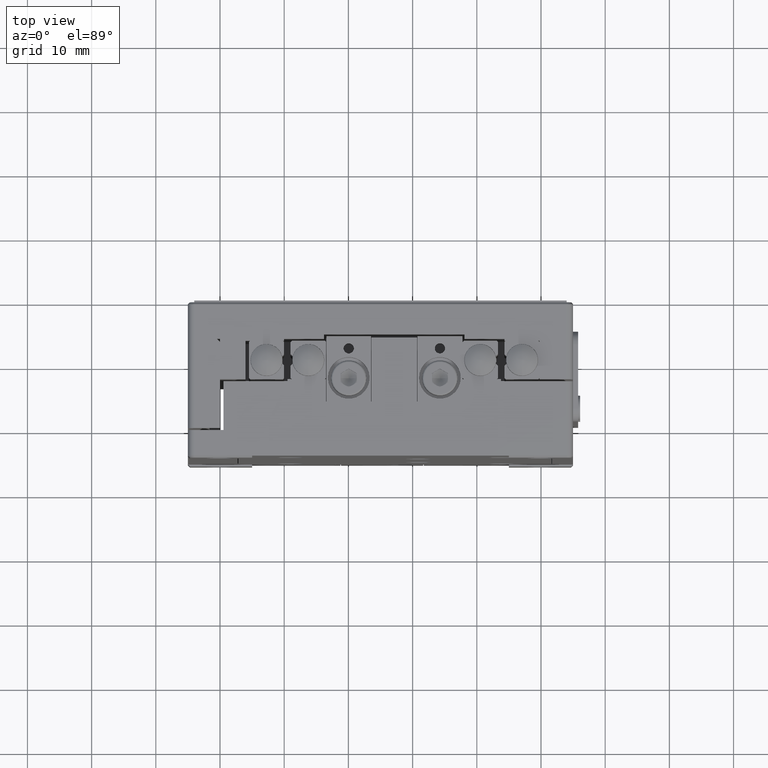
[diagram: clean part render]
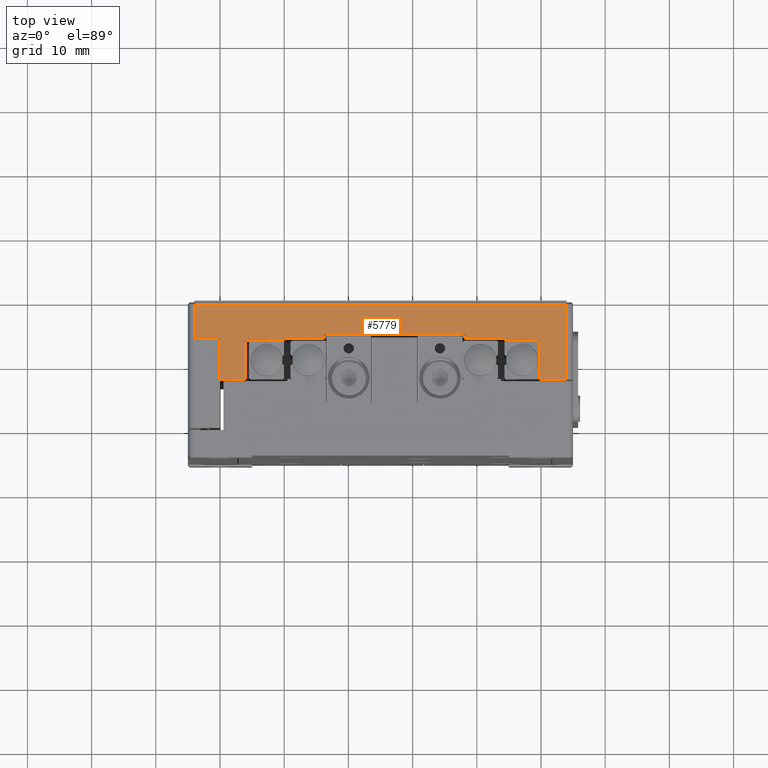
[diagram: same view with one face highlighted and labeled with its STEP entity id]
A machine part, top view. The second image highlights one B-rep face of the part: STEP entity #5779.
In plain terms, the highlighted planar face has unit normal (-0, 0, -1).
Its self-contained STEP definition (entity closure, byte-faithful):
#478 = EDGE_CURVE ( 'NONE', #15050, #9602, #19301, .T. ) ;
#634 = ORIENTED_EDGE ( 'NONE', *, *, #15355, .F. ) ;
#811 = CARTESIAN_POINT ( 'NONE',  ( 45.00000000000000000, 6.000000000000000000, 0.000000000000000000 ) ) ;
#841 = DIRECTION ( 'NONE',  ( 0.000000000000000000, -1.000000000000000000, 0.000000000000000000 ) ) ;
#894 = CARTESIAN_POINT ( 'NONE',  ( 51.00000000000000000, -1.355252715606879951E-15, 0.000000000000000000 ) ) ;
#1202 = VECTOR ( 'NONE', #15958, 1000.000000000000000 ) ;
#1342 = LINE ( 'NONE', #16362, #1202 ) ;
#1390 = CARTESIAN_POINT ( 'NONE',  ( 51.00000000000000000, 6.000000000000000000, 0.000000000000000000 ) ) ;
#1617 = EDGE_CURVE ( 'NONE', #22444, #3244, #16392, .T. ) ;
#1944 = ORIENTED_EDGE ( 'NONE', *, *, #20874, .T. ) ;
#2536 = EDGE_CURVE ( 'NONE', #18264, #8431, #12239, .T. ) ;
#2708 = DIRECTION ( 'NONE',  ( 1.000000000000000000, 0.000000000000000000, 0.000000000000000000 ) ) ;
#2711 = ORIENTED_EDGE ( 'NONE', *, *, #4411, .F. ) ;
#2819 = CARTESIAN_POINT ( 'NONE',  ( 10.69999999999999929, 6.000000000000000000, 0.000000000000000000 ) ) ;
#3184 = DIRECTION ( 'NONE',  ( 0.000000000000000000, -1.000000000000000000, 0.000000000000000000 ) ) ;
#3244 = VERTEX_POINT ( 'NONE', #21603 ) ;
#3270 = CARTESIAN_POINT ( 'NONE',  ( 59.00000000000000000, 6.299999999999999822, 0.000000000000000000 ) ) ;
#3380 = VECTOR ( 'NONE', #18536, 1000.000000000000000 ) ;
#3426 = ORIENTED_EDGE ( 'NONE', *, *, #6223, .F. ) ;
#3507 = DIRECTION ( 'NONE',  ( 0.000000000000000000, 0.000000000000000000, 1.000000000000000000 ) ) ;
#3510 = VERTEX_POINT ( 'NONE', #8086 ) ;
#4118 = CARTESIAN_POINT ( 'NONE',  ( 16.89999999999999858, 7.000000000000000000, 0.000000000000000000 ) ) ;
#4411 = EDGE_CURVE ( 'NONE', #8074, #12332, #18697, .T. ) ;
#4640 = VECTOR ( 'NONE', #15558, 1000.000000000000000 ) ;
#4725 = DIRECTION ( 'NONE',  ( 1.000000000000000000, 1.219727444046191995E-16, 0.000000000000000000 ) ) ;
#5333 = CARTESIAN_POINT ( 'NONE',  ( 5.200000000000000178, 0.000000000000000000, 0.000000000000000000 ) ) ;
#5434 = CARTESIAN_POINT ( 'NONE',  ( 1.000000000000000000, 0.000000000000000000, 0.000000000000000000 ) ) ;
#5680 = ORIENTED_EDGE ( 'NONE', *, *, #26035, .F. ) ;
#5743 = LINE ( 'NONE', #22903, #3380 ) ;
#5779 = ADVANCED_FACE ( 'NONE', ( #27444 ), #14071, .F. ) ;
#5789 = CARTESIAN_POINT ( 'NONE',  ( 45.00000000000000000, 6.000000000000000000, 0.000000000000000000 ) ) ;
#6223 = EDGE_CURVE ( 'NONE', #9602, #3510, #17289, .T. ) ;
#6250 = EDGE_CURVE ( 'NONE', #12332, #22499, #26977, .T. ) ;
#6275 = CARTESIAN_POINT ( 'NONE',  ( 5.200000000000000178, 6.000000000000000000, 0.000000000000000000 ) ) ;
#6347 = ORIENTED_EDGE ( 'NONE', *, *, #21388, .F. ) ;
#6370 = LINE ( 'NONE', #21977, #15180 ) ;
#6544 = CARTESIAN_POINT ( 'NONE',  ( 38.80000000000000426, 7.000000000000000000, 0.000000000000000000 ) ) ;
#6711 = CARTESIAN_POINT ( 'NONE',  ( 55.00000000000000000, -8.673617379884030542E-16, 0.000000000000000000 ) ) ;
#7104 = VECTOR ( 'NONE', #25983, 1000.000000000000000 ) ;
#7105 = ORIENTED_EDGE ( 'NONE', *, *, #25158, .F. ) ;
#7297 = CARTESIAN_POINT ( 'NONE',  ( 55.00000000000000000, 6.299999999999999822, 0.000000000000000000 ) ) ;
#7495 = VERTEX_POINT ( 'NONE', #17692 ) ;
#7817 = LINE ( 'NONE', #24980, #11197 ) ;
#8010 = DIRECTION ( 'NONE',  ( 0.000000000000000000, -1.000000000000000000, 0.000000000000000000 ) ) ;
#8059 = LINE ( 'NONE', #21134, #25415 ) ;
#8074 = VERTEX_POINT ( 'NONE', #18629 ) ;
#8086 = CARTESIAN_POINT ( 'NONE',  ( 45.00000000000000000, 6.299999999999999822, 0.000000000000000000 ) ) ;
#8431 = VERTEX_POINT ( 'NONE', #894 ) ;
#8557 = ORIENTED_EDGE ( 'NONE', *, *, #8633, .T. ) ;
#8633 = EDGE_CURVE ( 'NONE', #16148, #7495, #17581, .T. ) ;
#8727 = ORIENTED_EDGE ( 'NONE', *, *, #6250, .F. ) ;
#8748 = CARTESIAN_POINT ( 'NONE',  ( 38.80000000000000426, 7.000000000000000000, 0.000000000000000000 ) ) ;
#8817 = CARTESIAN_POINT ( 'NONE',  ( 38.80000000000000426, 6.299999999999999822, 0.000000000000000000 ) ) ;
#9062 = VECTOR ( 'NONE', #841, 1000.000000000000000 ) ;
#9276 = CARTESIAN_POINT ( 'NONE',  ( 16.89999999999999858, 7.000000000000000000, 0.000000000000000000 ) ) ;
#9508 = EDGE_CURVE ( 'NONE', #12138, #7495, #12771, .T. ) ;
#9602 = VERTEX_POINT ( 'NONE', #8817 ) ;
#10186 = VECTOR ( 'NONE', #25862, 1000.000000000000000 ) ;
#10358 = ORIENTED_EDGE ( 'NONE', *, *, #1617, .T. ) ;
#10564 = CARTESIAN_POINT ( 'NONE',  ( 10.69999999999999929, 6.299999999999999822, 0.000000000000000000 ) ) ;
#10782 = VERTEX_POINT ( 'NONE', #6711 ) ;
#10818 = CARTESIAN_POINT ( 'NONE',  ( 55.00000000000000000, -8.673617379884030542E-16, 0.000000000000000000 ) ) ;
#10892 = DIRECTION ( 'NONE',  ( 1.000000000000000000, 0.000000000000000000, 0.000000000000000000 ) ) ;
#10904 = ORIENTED_EDGE ( 'NONE', *, *, #17272, .F. ) ;
#10982 = ORIENTED_EDGE ( 'NONE', *, *, #9508, .F. ) ;
#11024 = LINE ( 'NONE', #4118, #25808 ) ;
#11054 = ORIENTED_EDGE ( 'NONE', *, *, #478, .F. ) ;
#11197 = VECTOR ( 'NONE', #3184, 1000.000000000000000 ) ;
#11236 = LINE ( 'NONE', #10818, #25601 ) ;
#11352 = CARTESIAN_POINT ( 'NONE',  ( 59.00000000000000000, 11.70000000000000107, 0.000000000000000000 ) ) ;
#11829 = VERTEX_POINT ( 'NONE', #5789 ) ;
#12138 = VERTEX_POINT ( 'NONE', #10564 ) ;
#12239 = LINE ( 'NONE', #20793, #25721 ) ;
#12332 = VERTEX_POINT ( 'NONE', #6275 ) ;
#12382 = DIRECTION ( 'NONE',  ( 0.000000000000000000, 1.000000000000000000, 0.000000000000000000 ) ) ;
#12771 = LINE ( 'NONE', #25969, #16862 ) ;
#12915 = DIRECTION ( 'NONE',  ( 1.000000000000000000, 0.000000000000000000, 0.000000000000000000 ) ) ;
#13125 = EDGE_CURVE ( 'NONE', #10782, #24836, #26573, .T. ) ;
#13423 = ORIENTED_EDGE ( 'NONE', *, *, #13679, .T. ) ;
#13495 = EDGE_CURVE ( 'NONE', #3510, #11829, #22165, .T. ) ;
#13571 = ORIENTED_EDGE ( 'NONE', *, *, #26517, .F. ) ;
#13679 = EDGE_CURVE ( 'NONE', #15242, #22240, #7817, .T. ) ;
#14071 = PLANE ( 'NONE',  #19082 ) ;
#14177 = DIRECTION ( 'NONE',  ( 1.000000000000000000, 0.000000000000000000, 0.000000000000000000 ) ) ;
#14495 = DIRECTION ( 'NONE',  ( 1.000000000000000000, 0.000000000000000000, 0.000000000000000000 ) ) ;
#15050 = VERTEX_POINT ( 'NONE', #6544 ) ;
#15180 = VECTOR ( 'NONE', #2708, 1000.000000000000000 ) ;
#15242 = VERTEX_POINT ( 'NONE', #11352 ) ;
#15292 = CARTESIAN_POINT ( 'NONE',  ( 60.00000000000000000, 6.299999999999999822, 0.000000000000000000 ) ) ;
#15355 = EDGE_CURVE ( 'NONE', #22444, #8074, #1342, .T. ) ;
#15558 = DIRECTION ( 'NONE',  ( 1.000000000000000000, 1.734723475976809806E-16, 0.000000000000000000 ) ) ;
#15750 = DIRECTION ( 'NONE',  ( 0.000000000000000000, 1.000000000000000000, 0.000000000000000000 ) ) ;
#15958 = DIRECTION ( 'NONE',  ( 1.000000000000000000, 0.000000000000000000, 0.000000000000000000 ) ) ;
#16148 = VERTEX_POINT ( 'NONE', #26452 ) ;
#16362 = CARTESIAN_POINT ( 'NONE',  ( 0.000000000000000000, 0.000000000000000000, 0.000000000000000000 ) ) ;
#16392 = LINE ( 'NONE', #5434, #27542 ) ;
#16862 = VECTOR ( 'NONE', #12915, 1000.000000000000000 ) ;
#17272 = EDGE_CURVE ( 'NONE', #8431, #10782, #11236, .T. ) ;
#17289 = LINE ( 'NONE', #19123, #10186 ) ;
#17581 = LINE ( 'NONE', #9276, #9062 ) ;
#17692 = CARTESIAN_POINT ( 'NONE',  ( 16.89999999999999858, 6.299999999999999822, 0.000000000000000000 ) ) ;
#18264 = VERTEX_POINT ( 'NONE', #1390 ) ;
#18536 = DIRECTION ( 'NONE',  ( 1.000000000000000000, 1.445602896647339903E-16, 0.000000000000000000 ) ) ;
#18570 = VECTOR ( 'NONE', #19432, 1000.000000000000000 ) ;
#18629 = CARTESIAN_POINT ( 'NONE',  ( 5.200000000000000178, 0.000000000000000000, 0.000000000000000000 ) ) ;
#18663 = CARTESIAN_POINT ( 'NONE',  ( 5.200000000000000178, 6.000000000000000000, 0.000000000000000000 ) ) ;
#18697 = LINE ( 'NONE', #5333, #26442 ) ;
#19082 = AXIS2_PLACEMENT_3D ( 'NONE', #20944, #3507, #14495 ) ;
#19123 = CARTESIAN_POINT ( 'NONE',  ( 10.69999999999999929, 6.299999999999999822, 0.000000000000000000 ) ) ;
#19301 = LINE ( 'NONE', #8748, #18570 ) ;
#19432 = DIRECTION ( 'NONE',  ( 0.000000000000000000, -1.000000000000000000, 0.000000000000000000 ) ) ;
#20059 = DIRECTION ( 'NONE',  ( 0.000000000000000000, 1.000000000000000000, 0.000000000000000000 ) ) ;
#20793 = CARTESIAN_POINT ( 'NONE',  ( 51.00000000000000000, -1.355252715606879951E-15, 0.000000000000000000 ) ) ;
#20874 = EDGE_CURVE ( 'NONE', #3244, #15242, #6370, .T. ) ;
#20944 = CARTESIAN_POINT ( 'NONE',  ( 0.000000000000000000, 0.000000000000000000, 0.000000000000000000 ) ) ;
#21134 = CARTESIAN_POINT ( 'NONE',  ( 10.69999999999999929, 6.000000000000000000, 0.000000000000000000 ) ) ;
#21188 = VECTOR ( 'NONE', #14177, 1000.000000000000000 ) ;
#21388 = EDGE_CURVE ( 'NONE', #11829, #18264, #5743, .T. ) ;
#21603 = CARTESIAN_POINT ( 'NONE',  ( 1.000000000000000000, 11.70000000000000107, 0.000000000000000000 ) ) ;
#21977 = CARTESIAN_POINT ( 'NONE',  ( 0.000000000000000000, 11.70000000000000107, 0.000000000000000000 ) ) ;
#22077 = ORIENTED_EDGE ( 'NONE', *, *, #13495, .F. ) ;
#22165 = LINE ( 'NONE', #811, #7104 ) ;
#22240 = VERTEX_POINT ( 'NONE', #3270 ) ;
#22444 = VERTEX_POINT ( 'NONE', #25626 ) ;
#22499 = VERTEX_POINT ( 'NONE', #2819 ) ;
#22903 = CARTESIAN_POINT ( 'NONE',  ( 51.00000000000000000, 6.000000000000000000, 0.000000000000000000 ) ) ;
#23091 = DIRECTION ( 'NONE',  ( 0.000000000000000000, 1.000000000000000000, 0.000000000000000000 ) ) ;
#24266 = LINE ( 'NONE', #15292, #4640 ) ;
#24515 = ORIENTED_EDGE ( 'NONE', *, *, #2536, .F. ) ;
#24824 = ORIENTED_EDGE ( 'NONE', *, *, #13125, .F. ) ;
#24836 = VERTEX_POINT ( 'NONE', #26122 ) ;
#24980 = CARTESIAN_POINT ( 'NONE',  ( 59.00000000000000000, 0.000000000000000000, 0.000000000000000000 ) ) ;
#25158 = EDGE_CURVE ( 'NONE', #16148, #15050, #11024, .T. ) ;
#25415 = VECTOR ( 'NONE', #23091, 1000.000000000000000 ) ;
#25601 = VECTOR ( 'NONE', #4725, 1000.000000000000000 ) ;
#25626 = CARTESIAN_POINT ( 'NONE',  ( 1.000000000000000000, 0.000000000000000000, 0.000000000000000000 ) ) ;
#25721 = VECTOR ( 'NONE', #8010, 1000.000000000000000 ) ;
#25808 = VECTOR ( 'NONE', #10892, 1000.000000000000000 ) ;
#25862 = DIRECTION ( 'NONE',  ( 1.000000000000000000, 0.000000000000000000, 0.000000000000000000 ) ) ;
#25969 = CARTESIAN_POINT ( 'NONE',  ( 10.69999999999999929, 6.299999999999999822, 0.000000000000000000 ) ) ;
#25983 = DIRECTION ( 'NONE',  ( 0.000000000000000000, -1.000000000000000000, 0.000000000000000000 ) ) ;
#26035 = EDGE_CURVE ( 'NONE', #22499, #12138, #8059, .T. ) ;
#26122 = CARTESIAN_POINT ( 'NONE',  ( 55.00000000000000000, 6.299999999999999822, 0.000000000000000000 ) ) ;
#26442 = VECTOR ( 'NONE', #12382, 1000.000000000000000 ) ;
#26452 = CARTESIAN_POINT ( 'NONE',  ( 16.89999999999999858, 7.000000000000000000, 0.000000000000000000 ) ) ;
#26517 = EDGE_CURVE ( 'NONE', #24836, #22240, #24266, .T. ) ;
#26573 = LINE ( 'NONE', #7297, #27336 ) ;
#26977 = LINE ( 'NONE', #18663, #21188 ) ;
#27336 = VECTOR ( 'NONE', #15750, 1000.000000000000000 ) ;
#27444 = FACE_OUTER_BOUND ( 'NONE', #27568, .T. ) ;
#27542 = VECTOR ( 'NONE', #20059, 1000.000000000000000 ) ;
#27568 = EDGE_LOOP ( 'NONE', ( #3426, #11054, #7105, #8557, #10982, #5680, #8727, #2711, #634, #10358, #1944, #13423, #13571, #24824, #10904, #24515, #6347, #22077 ) ) ;